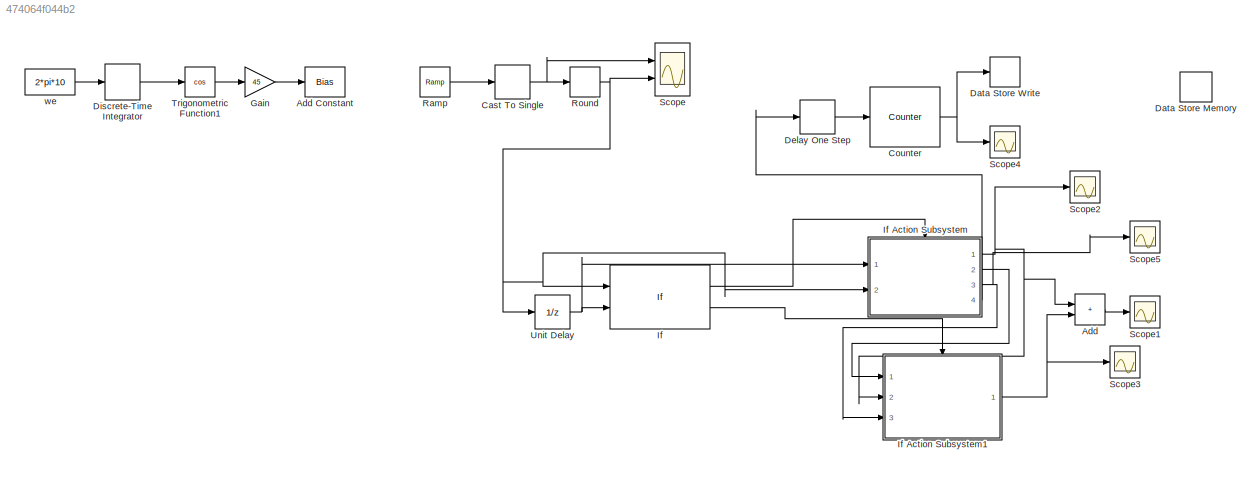
MODEL slx_474064f044b2
KIND model
CONFIG AbsTol = auto
CONFIG EnableMultiTasking = off
CONFIG FixedStep = 0.0001
CONFIG MaxStep = auto
CONFIG MinStep = auto
CONFIG RelTol = 1e-3
CONFIG SampleTimeConstraint = Unconstrained
CONFIG SolverName = FixedStepDiscrete
CONFIG StartTime = 0.0
CONFIG StopTime = 10
BLOCK [Sum] Add
  IconShape = rectangular
  Ports = [2, 1]
BLOCK [Bias] Add Constant
  Bias = 45
  Commented = on
  SaturateOnIntegerOverflow = off
BLOCK [DataTypeConversion] Cast To Single
  OutDataTypeStr = single
  RndMeth = Floor
  SaturateOnIntegerOverflow = off
BLOCK [Reference] Counter  REF=dspswit3/Counter
  Ports = [1, 1]
  SourceBlock = dspswit3/Counter
  SourceProductBaseCode = DS
  SourceType = Counter
BLOCK [DataStoreMemory] Data Store Memory
  DataStoreName = Count
  ShowAdditionalParam = off
  WriteAfterWriteMsg = warning
BLOCK [DataStoreWrite] Data Store Write
  DataStoreName = Count
  IndexOptions = Index vector (dialog)
  Indices = 1
  OutputSizes = 1
  Ports = [1]
BLOCK [Delay] Delay One Step
  DelayLength = 1
  InputPortMap = u0
  Ports = [1, 1]
BLOCK [DiscreteIntegrator] Discrete-Time Integrator
  Commented = on
  ICPrevOutput = DiscIntNeverNeededParam
  ICPrevScaledInput = DiscIntNeverNeededParam
  InitialConditionSetting = Auto
  Ports = [1, 1]
  SampleTime = -1
BLOCK [Gain] Gain
  Commented = on
  Gain = 45
BLOCK [If] If
  IfExpression = u1 ~= u2
  NumInputs = 2
  Ports = [2, 2]
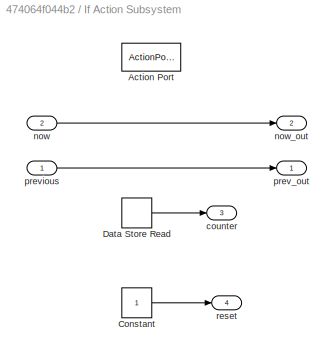
BLOCK [SubSystem] If Action Subsystem
  Ports = [2, 4, 0, 0, 0, 0, 0, 1]
  RequestExecContextInheritance = off
  TreatAsAtomicUnit = on
BLOCK [ActionPort] If Action Subsystem/Action Port
  ActionPortLabel = if(u1 ~= u2)
  InitializeStates = reset
BLOCK [Constant] If Action Subsystem/Constant
BLOCK [DataStoreRead] If Action Subsystem/Data Store Read
  DataStoreName = Count
  IndexOptions = Index vector (dialog)
  Indices = 1
  OutputSizes = 1
  Ports = [0, 1]
BLOCK [Outport] If Action Subsystem/counter
  Port = 3
BLOCK [Inport] If Action Subsystem/now
  Port = 2
BLOCK [Outport] If Action Subsystem/now_out
  Port = 2
BLOCK [Outport] If Action Subsystem/prev_out
BLOCK [Inport] If Action Subsystem/previous
BLOCK [Outport] If Action Subsystem/reset
  InitialOutput = 0
  OutputWhenDisabled = reset
  Port = 4
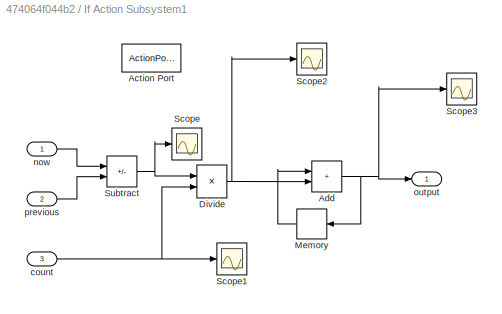
BLOCK [SubSystem] If Action Subsystem1
  Ports = [3, 1, 0, 0, 0, 0, 0, 1]
  RequestExecContextInheritance = off
  TreatAsAtomicUnit = on
BLOCK [ActionPort] If Action Subsystem1/Action Port
  ActionPortLabel = else
BLOCK [Sum] If Action Subsystem1/Add
  IconShape = rectangular
  Ports = [2, 1]
BLOCK [Product] If Action Subsystem1/Divide
  Inputs = */
  Ports = [2, 1]
  RndMeth = Zero
  SaturateOnIntegerOverflow = on
BLOCK [Memory] If Action Subsystem1/Memory
  InheritSampleTime = on
  LinearizeAsDelay = on
BLOCK [Scope] If Action Subsystem1/Scope
  Floating = off
  NumInputPorts = 1
  Ports = [1]
  ScopeSpecificationString = Simulink.scopes.TimeScopeBlockCfg('CurrentConfiguration', extmgr.ConfigurationSet(extmgr.Configuration('Core','General UI',true),extmgr.Configuration('Core','Source UI',true),extmgr.Configuration('Sources','WiredSimulink',true,'DataLoggingVariableName','ScopeData2'),extmgr.Configuration('Visuals','Time Domain',true,'SerializedDisplays',{struct('MinYLimReal','-0.125','MaxYLimReal','1.125','YLabelRe...<+1399ch>
BLOCK [Scope] If Action Subsystem1/Scope1
  Floating = off
  NumInputPorts = 1
  Ports = [1]
  ScopeSpecificationString = Simulink.scopes.TimeScopeBlockCfg('CurrentConfiguration', extmgr.ConfigurationSet(extmgr.Configuration('Core','General UI',true),extmgr.Configuration('Core','Source UI',true),extmgr.Configuration('Sources','WiredSimulink',true,'DataLoggingVariableName','ScopeData3'),extmgr.Configuration('Visuals','Time Domain',true,'SerializedDisplays',{struct('MinYLimReal','-249.875','MaxYLimReal','2248.875','YLa...<+1545ch>
BLOCK [Scope] If Action Subsystem1/Scope2
  Floating = off
  NumInputPorts = 1
  Ports = [1]
  ScopeSpecificationString = Simulink.scopes.TimeScopeBlockCfg('CurrentConfiguration', extmgr.ConfigurationSet(extmgr.Configuration('Core','General UI',true),extmgr.Configuration('Core','Source UI',true),extmgr.Configuration('Sources','WiredSimulink',true,'DataLoggingVariableName','ScopeData4'),extmgr.Configuration('Visuals','Time Domain',true,'SerializedDisplays',{struct('MinYLimReal','0.00044','MaxYLimReal','0.00106','YLabe...<+1388ch>
BLOCK [Scope] If Action Subsystem1/Scope3
  Floating = off
  NumInputPorts = 1
  Ports = [1]
  ScopeSpecificationString = Simulink.scopes.TimeScopeBlockCfg('CurrentConfiguration', extmgr.ConfigurationSet(extmgr.Configuration('Core','General UI',true),extmgr.Configuration('Core','Source UI',true),extmgr.Configuration('Sources','WiredSimulink',true,'DataLoggingVariableName','ScopeData8'),extmgr.Configuration('Visuals','Time Domain',true,'SerializedDisplays',{struct('MinYLimReal','-10','MaxYLimReal','10','YLabelReal',''...<+788ch>
BLOCK [Sum] If Action Subsystem1/Subtract
  IconShape = rectangular
  Inputs = +-
  Ports = [2, 1]
BLOCK [Inport] If Action Subsystem1/count
  Port = 3
BLOCK [Inport] If Action Subsystem1/now
BLOCK [Outport] If Action Subsystem1/output
  InitialOutput = 0
BLOCK [Inport] If Action Subsystem1/previous
  Port = 2
BLOCK [Reference] Ramp  REF=simulink/Sources/Ramp
  Ports = [0, 1]
  SourceBlock = simulink/Sources/Ramp
  SourceProductBaseCode = SL
  SourceType = Ramp
BLOCK [Rounding] Round
  Operator = round
BLOCK [Scope] Scope
  Floating = off
  NumInputPorts = 2
  Ports = [2]
  ScopeSpecificationString = Simulink.scopes.TimeScopeBlockCfg('CurrentConfiguration', extmgr.ConfigurationSet(extmgr.Configuration('Core','General UI',true),extmgr.Configuration('Core','Source UI',true),extmgr.Configuration('Sources','WiredSimulink',true),extmgr.Configuration('Visuals','Time Domain',true,'SerializedDisplays',{struct('MinYLimReal','-6.25','MaxYLimReal','56.25','YLabelReal','','MinYLimMag','0.00000','MaxYLimMa...<+1546ch>
BLOCK [Scope] Scope1
  Floating = off
  NumInputPorts = 1
  Ports = [1]
  ScopeSpecificationString = Simulink.scopes.TimeScopeBlockCfg('CurrentConfiguration', extmgr.ConfigurationSet(extmgr.Configuration('Core','General UI',true),extmgr.Configuration('Core','Source UI',true),extmgr.Configuration('Sources','WiredSimulink',true,'DataLoggingVariableName','ScopeData1'),extmgr.Configuration('Visuals','Time Domain',true,'SerializedDisplays',{struct('MinYLimReal','-1.125','MaxYLimReal','10.125','YLabelR...<+1379ch>
BLOCK [Scope] Scope2
  Floating = off
  NumInputPorts = 1
  Ports = [1]
  ScopeSpecificationString = Simulink.scopes.TimeScopeBlockCfg('CurrentConfiguration', extmgr.ConfigurationSet(extmgr.Configuration('Core','General UI',true),extmgr.Configuration('Core','Source UI',true),extmgr.Configuration('Sources','WiredSimulink',true,'DataLoggingVariableName','ScopeData5'),extmgr.Configuration('Visuals','Time Domain',true,'SerializedDisplays',{struct('MinYLimReal','-6.125','MaxYLimReal','55.125','YLabelR...<+1372ch>
BLOCK [Scope] Scope3
  Floating = off
  NumInputPorts = 1
  Ports = [1]
  ScopeSpecificationString = Simulink.scopes.TimeScopeBlockCfg('CurrentConfiguration', extmgr.ConfigurationSet(extmgr.Configuration('Core','General UI',true),extmgr.Configuration('Core','Source UI',true),extmgr.Configuration('Sources','WiredSimulink',true,'DataLoggingVariableName','ScopeData6'),extmgr.Configuration('Visuals','Time Domain',true,'SerializedDisplays',{struct('MinYLimReal','-1.00000','MaxYLimReal','1.00000','YLab...<+1404ch>
BLOCK [Scope] Scope4
  Floating = off
  NumInputPorts = 1
  Ports = [1]
  ScopeSpecificationString = Simulink.scopes.TimeScopeBlockCfg('CurrentConfiguration', extmgr.ConfigurationSet(extmgr.Configuration('Core','General UI',true),extmgr.Configuration('Core','Source UI',true),extmgr.Configuration('Sources','WiredSimulink',true,'DataLoggingVariableName','ScopeData7'),extmgr.Configuration('Visuals','Time Domain',true,'SerializedDisplays',{struct('MinYLimReal','-249.875','MaxYLimReal','2248.875','YLa...<+1396ch>
BLOCK [Scope] Scope5
  Floating = off
  NumInputPorts = 1
  Ports = [1]
  ScopeSpecificationString = Simulink.scopes.TimeScopeBlockCfg('CurrentConfiguration', extmgr.ConfigurationSet(extmgr.Configuration('Core','General UI',true),extmgr.Configuration('Core','Source UI',true),extmgr.Configuration('Sources','WiredSimulink',true,'DataLoggingVariableName','ScopeData9'),extmgr.Configuration('Visuals','Time Domain',true,'SerializedDisplays',{struct('MinYLimReal','-249.875','MaxYLimReal','2248.875','YLa...<+1386ch>
BLOCK [Trigonometry] Trigonometric Function1
  Commented = on
  Operator = cos
  Ports = [1, 1]
BLOCK [UnitDelay] Unit Delay
  HasFrameUpgradeWarning = on
  SampleTime = -1
BLOCK [Constant] we
  Commented = on
  SampleTime = -1
  Value = 2*pi*10
LINE Add:1 -> Scope1:1
NET Cast To Single:1 -> Round:1, Scope:1
NET Counter:1 -> Data Store Write:1, Scope4:1
LINE Delay One Step:1 -> Counter:1
LINE Discrete-Time Integrator:1 -> Trigonometric Function1:1
LINE Gain:1 -> Add Constant:1
LINE If Action Subsystem/Constant:1 -> If Action Subsystem/reset:1
LINE If Action Subsystem/Data Store Read:1 -> If Action Subsystem/counter:1
LINE If Action Subsystem/now:1 -> If Action Subsystem/now_out:1
LINE If Action Subsystem/previous:1 -> If Action Subsystem/prev_out:1
NET If Action Subsystem1/Add:1 -> If Action Subsystem1/Memory:1, If Action Subsystem1/Scope3:1, If Action Subsystem1/output:1
NET If Action Subsystem1/Divide:1 -> If Action Subsystem1/Add:2, If Action Subsystem1/Scope2:1
LINE If Action Subsystem1/Memory:1 -> If Action Subsystem1/Add:1
NET If Action Subsystem1/Subtract:1 -> If Action Subsystem1/Divide:1, If Action Subsystem1/Scope:1
NET If Action Subsystem1/count:1 -> If Action Subsystem1/Divide:2, If Action Subsystem1/Scope1:1
LINE If Action Subsystem1/now:1 -> If Action Subsystem1/Subtract:1
LINE If Action Subsystem1/previous:1 -> If Action Subsystem1/Subtract:2
NET If Action Subsystem1:1 -> Add:2, Scope3:1
NET If Action Subsystem:1 -> Add:1, If Action Subsystem1:2, Scope2:1
LINE If Action Subsystem:2 -> If Action Subsystem1:1
NET If Action Subsystem:3 -> If Action Subsystem1:3, Scope5:1
LINE If Action Subsystem:4 -> Delay One Step:1
LINE If:1 -> If Action Subsystem:ifaction
LINE If:2 -> If Action Subsystem1:ifaction
LINE Ramp:1 -> Cast To Single:1
NET Round:1 -> If Action Subsystem:2, If:1, Scope:2, Unit Delay:1
LINE Trigonometric Function1:1 -> Gain:1
NET Unit Delay:1 -> If Action Subsystem:1, If:2
LINE we:1 -> Discrete-Time Integrator:1
note: NET lines group one-source signal fan-out (src -> all destinations, sorted); 1:1 wires keep LINE
